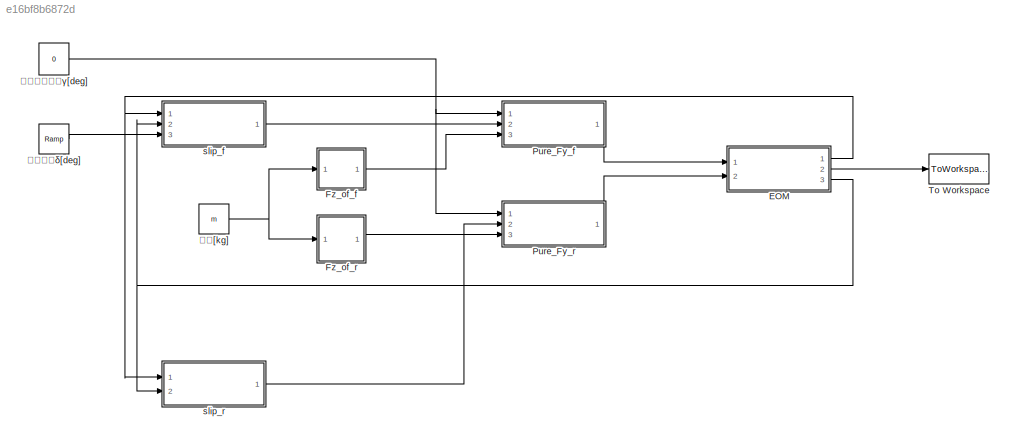
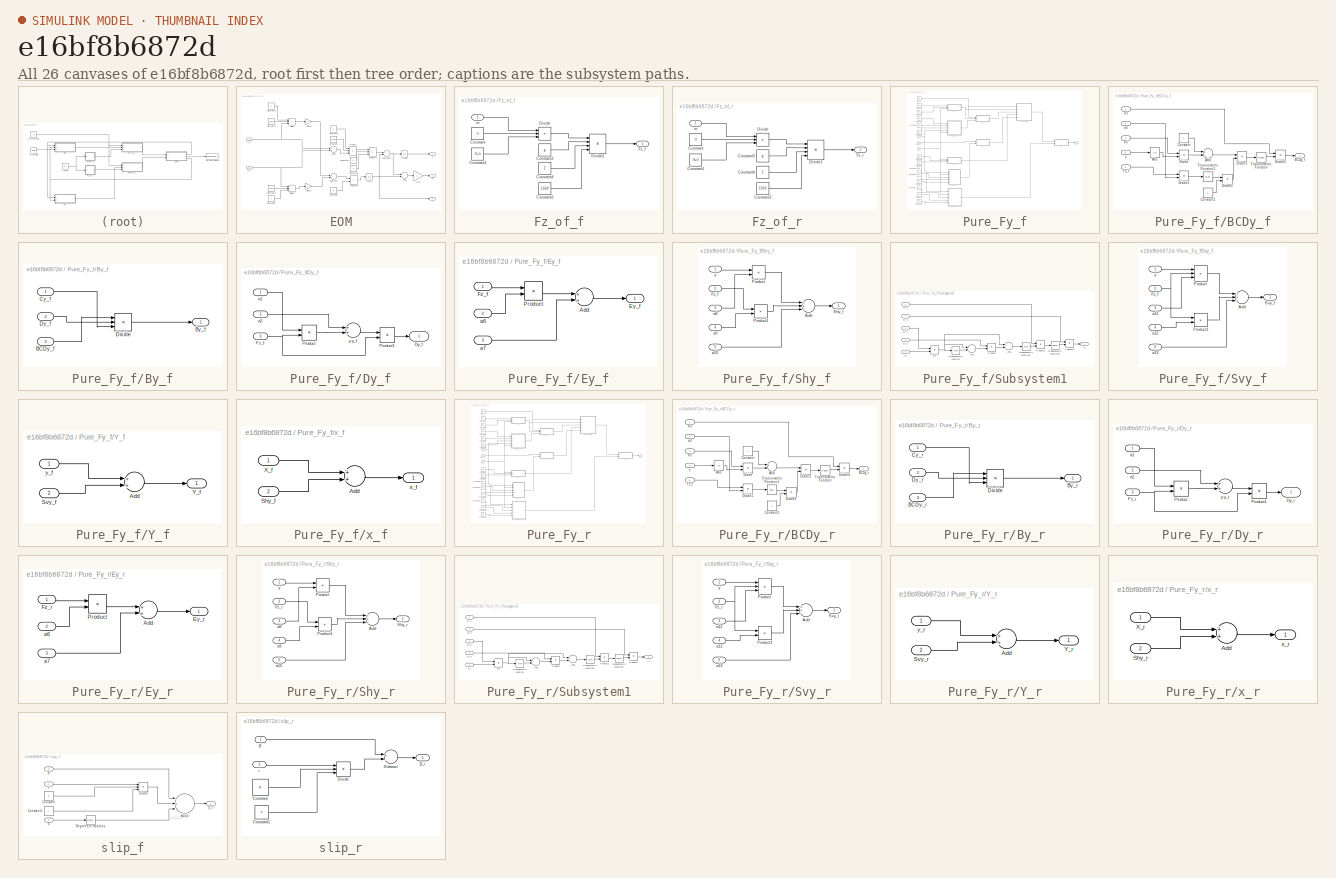
[diagram: thumbnail index - all 26 canvases of the model, root first then tree order]
MODEL slx_e16bf8b6872d
KIND model
CONFIG AbsTol = auto
CONFIG EnableMultiTasking = off
CONFIG FixedStep = auto
CONFIG MaxStep = auto
CONFIG MinStep = auto
CONFIG RelTol = 1e-3
CONFIG SampleTimeConstraint = Unconstrained
CONFIG Solver = VariableStepAuto
CONFIG SolverName = VariableStepAuto
CONFIG StartTime = 0.0
CONFIG StopTime = 60
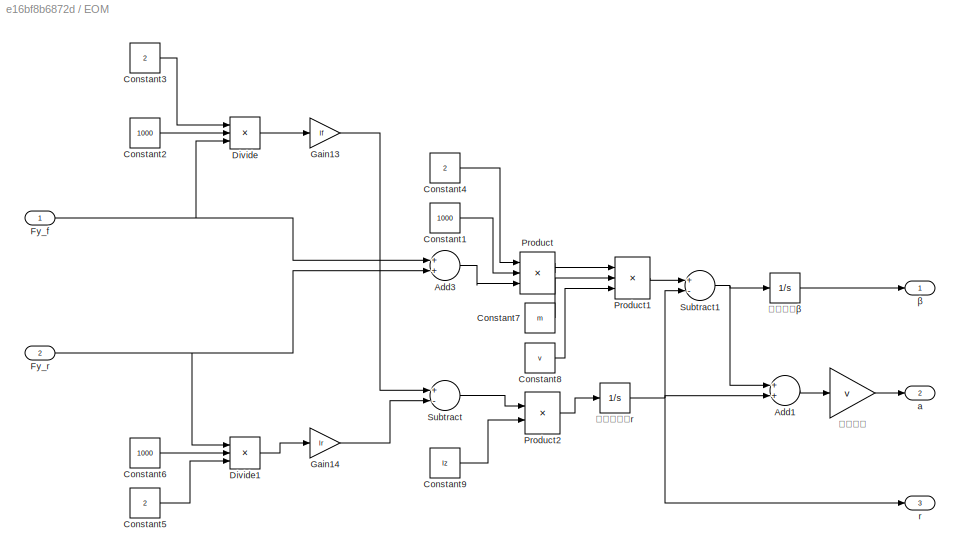
BLOCK [SubSystem] EOM
  Ports = [2, 3]
  RequestExecContextInheritance = off
BLOCK [Sum] EOM/Add1
  InputSameDT = off
  OutDataTypeStr = Inherit: Inherit via internal rule
  Ports = [2, 1]
  SaturateOnIntegerOverflow = off
BLOCK [Sum] EOM/Add3
  InputSameDT = off
  OutDataTypeStr = Inherit: Inherit via internal rule
  Ports = [2, 1]
  SaturateOnIntegerOverflow = off
BLOCK [Constant] EOM/Constant1
  Value = 1000
BLOCK [Constant] EOM/Constant2
  Value = 1000
BLOCK [Constant] EOM/Constant3
  Value = 2
BLOCK [Constant] EOM/Constant4
  Value = 2
BLOCK [Constant] EOM/Constant5
  Value = 2
BLOCK [Constant] EOM/Constant6
  Value = 1000
BLOCK [Constant] EOM/Constant7
  Value = m
BLOCK [Constant] EOM/Constant8
  Value = v
BLOCK [Constant] EOM/Constant9
  Value = Iz
BLOCK [Product] EOM/Divide
  InputSameDT = off
  Inputs = ***
  OutDataTypeStr = Inherit: Inherit via internal rule
  Ports = [3, 1]
  RndMeth = Floor
  SaturateOnIntegerOverflow = off
BLOCK [Product] EOM/Divide1
  InputSameDT = off
  Inputs = ***
  OutDataTypeStr = Inherit: Inherit via internal rule
  Ports = [3, 1]
  RndMeth = Floor
  SaturateOnIntegerOverflow = off
BLOCK [Inport] EOM/Fy_f
  IconDisplay = Port number
BLOCK [Inport] EOM/Fy_r
  IconDisplay = Port number
  Port = 2
BLOCK [Gain] EOM/Gain13
  Gain = lf
  OutDataTypeStr = Inherit: Inherit via internal rule
  ParamDataTypeStr = Inherit: Inherit via internal rule
  SaturateOnIntegerOverflow = off
BLOCK [Gain] EOM/Gain14
  Gain = lr
  OutDataTypeStr = Inherit: Inherit via internal rule
  ParamDataTypeStr = Inherit: Inherit via internal rule
  SaturateOnIntegerOverflow = off
BLOCK [Product] EOM/Product
  InputSameDT = off
  Inputs = 3
  OutDataTypeStr = Inherit: Inherit via internal rule
  Ports = [3, 1]
  RndMeth = Floor
  SaturateOnIntegerOverflow = off
BLOCK [Product] EOM/Product1
  InputSameDT = off
  Inputs = *//
  OutDataTypeStr = Inherit: Inherit via internal rule
  Ports = [3, 1]
  RndMeth = Floor
  SaturateOnIntegerOverflow = off
BLOCK [Product] EOM/Product2
  InputSameDT = off
  Inputs = */
  OutDataTypeStr = Inherit: Inherit via internal rule
  Ports = [2, 1]
  RndMeth = Floor
  SaturateOnIntegerOverflow = off
BLOCK [Sum] EOM/Subtract
  InputSameDT = off
  Inputs = +-
  OutDataTypeStr = Inherit: Inherit via internal rule
  Ports = [2, 1]
  SaturateOnIntegerOverflow = off
BLOCK [Sum] EOM/Subtract1
  InputSameDT = off
  Inputs = +-
  OutDataTypeStr = Inherit: Inherit via internal rule
  Ports = [2, 1]
  SaturateOnIntegerOverflow = off
BLOCK [Outport] EOM/a
  IconDisplay = Port number
  Port = 2
  VectorParamsAs1DForOutWhenUnconnected = off
BLOCK [Outport] EOM/r
  IconDisplay = Port number
  Port = 3
  VectorParamsAs1DForOutWhenUnconnected = off
BLOCK [Outport] EOM/β
  IconDisplay = Port number
  VectorParamsAs1DForOutWhenUnconnected = off
BLOCK [Integrator] EOM/ヨーレイトr
  Ports = [1, 1]
BLOCK [Gain] EOM/横加速度
  Gain = v
  OutDataTypeStr = Inherit: Inherit via internal rule
  ParamDataTypeStr = Inherit: Inherit via internal rule
  SaturateOnIntegerOverflow = off
BLOCK [Integrator] EOM/横滑り角β
  Ports = [1, 1]
BLOCK [SubSystem] Fz_of_f
  Ports = [1, 1]
  RequestExecContextInheritance = off
BLOCK [Constant] Fz_of_f/Constant
  Value = lr
BLOCK [Constant] Fz_of_f/Constant1
  Value = lf+lr
BLOCK [Constant] Fz_of_f/Constant2
  Value = 1000
BLOCK [Constant] Fz_of_f/Constant3
  Value = g
BLOCK [Constant] Fz_of_f/Constant4
  Value = 2
BLOCK [Product] Fz_of_f/Divide
  InputSameDT = off
  Inputs = **/
  OutDataTypeStr = Inherit: Inherit via internal rule
  Ports = [3, 1]
  RndMeth = Floor
  SaturateOnIntegerOverflow = off
BLOCK [Product] Fz_of_f/Divide1
  InputSameDT = off
  Inputs = **//
  OutDataTypeStr = Inherit: Inherit via internal rule
  Ports = [4, 1]
  RndMeth = Floor
  SaturateOnIntegerOverflow = off
BLOCK [Outport] Fz_of_f/Fz_f
  IconDisplay = Port number
  VectorParamsAs1DForOutWhenUnconnected = off
BLOCK [Inport] Fz_of_f/m
  IconDisplay = Port number
BLOCK [SubSystem] Fz_of_r
  Ports = [1, 1]
  RequestExecContextInheritance = off
BLOCK [Constant] Fz_of_r/Constant
  Value = lf
BLOCK [Constant] Fz_of_r/Constant1
  Value = lf+lr
BLOCK [Constant] Fz_of_r/Constant2
  Value = 1000
BLOCK [Constant] Fz_of_r/Constant3
  Value = g
BLOCK [Constant] Fz_of_r/Constant4
  Value = 2
BLOCK [Product] Fz_of_r/Divide
  InputSameDT = off
  Inputs = **/
  OutDataTypeStr = Inherit: Inherit via internal rule
  Ports = [3, 1]
  RndMeth = Floor
  SaturateOnIntegerOverflow = off
BLOCK [Product] Fz_of_r/Divide1
  InputSameDT = off
  Inputs = **//
  OutDataTypeStr = Inherit: Inherit via internal rule
  Ports = [4, 1]
  RndMeth = Floor
  SaturateOnIntegerOverflow = off
BLOCK [Outport] Fz_of_r/Fz_r
  IconDisplay = Port number
  VectorParamsAs1DForOutWhenUnconnected = off
BLOCK [Inport] Fz_of_r/m
  IconDisplay = Port number
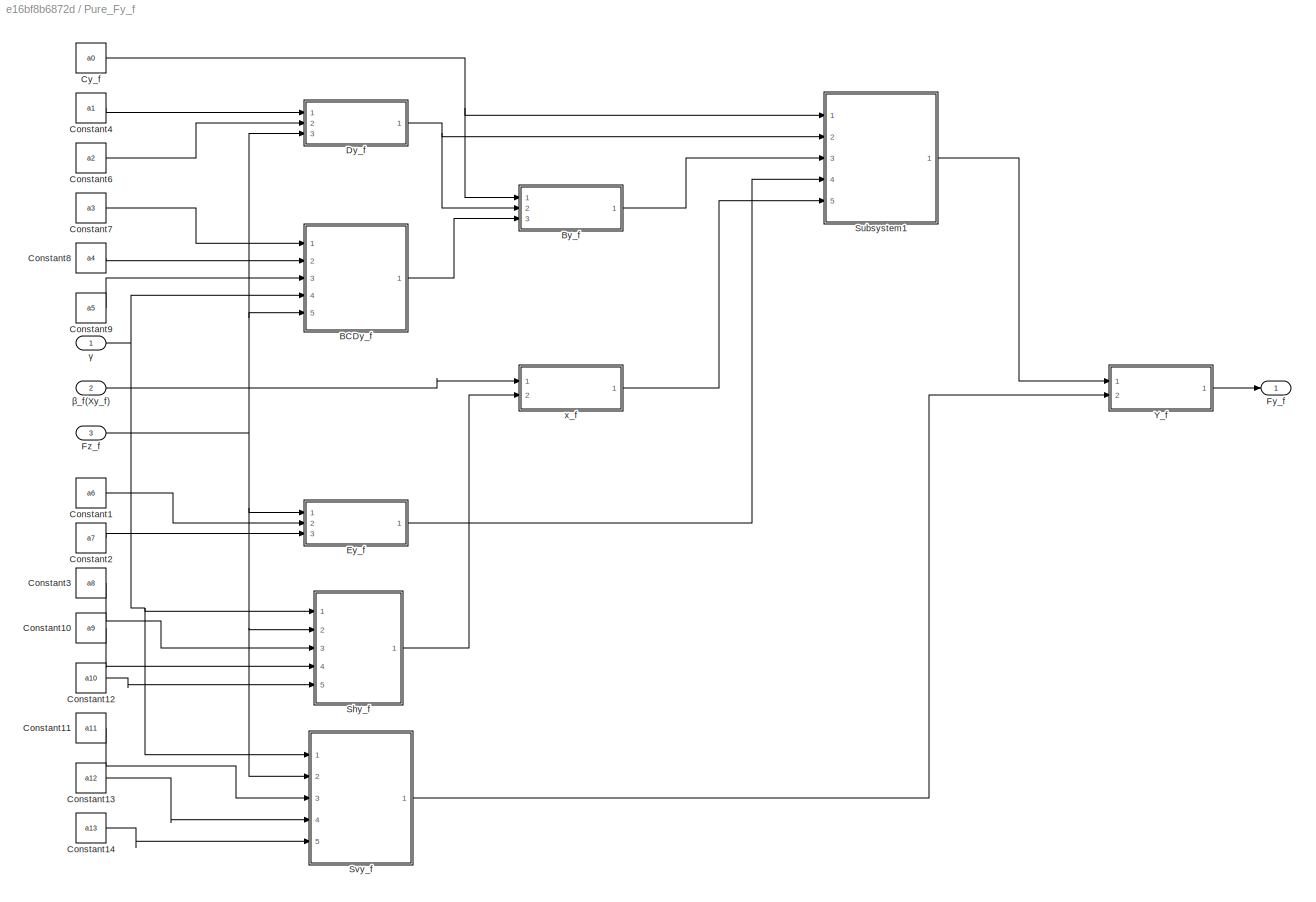
BLOCK [SubSystem] Pure_Fy_f
  Ports = [3, 1]
  RequestExecContextInheritance = off
BLOCK [SubSystem] Pure_Fy_f/BCDy_f
  Ports = [5, 1]
  RequestExecContextInheritance = off
BLOCK [Abs] Pure_Fy_f/BCDy_f/Abs
  SaturateOnIntegerOverflow = off
BLOCK [Sum] Pure_Fy_f/BCDy_f/Add
  InputSameDT = off
  Inputs = +-
  OutDataTypeStr = Inherit: Inherit via internal rule
  Ports = [2, 1]
  SaturateOnIntegerOverflow = off
BLOCK [Outport] Pure_Fy_f/BCDy_f/BCDy_f
  IconDisplay = Port number
  VectorParamsAs1DForOutWhenUnconnected = off
BLOCK [Constant] Pure_Fy_f/BCDy_f/Constant
BLOCK [Constant] Pure_Fy_f/BCDy_f/Constant1
  Value = 2
BLOCK [Product] Pure_Fy_f/BCDy_f/Divide
  InputSameDT = off
  Inputs = **
  OutDataTypeStr = Inherit: Inherit via internal rule
  Ports = [2, 1]
  RndMeth = Floor
  SaturateOnIntegerOverflow = off
BLOCK [Product] Pure_Fy_f/BCDy_f/Divide1
  InputSameDT = off
  Inputs = */
  OutDataTypeStr = Inherit: Inherit via internal rule
  Ports = [2, 1]
  RndMeth = Floor
  SaturateOnIntegerOverflow = off
BLOCK [Product] Pure_Fy_f/BCDy_f/Divide2
  InputSameDT = off
  Inputs = **
  OutDataTypeStr = Inherit: Inherit via internal rule
  Ports = [2, 1]
  RndMeth = Floor
  SaturateOnIntegerOverflow = off
BLOCK [Product] Pure_Fy_f/BCDy_f/Divide3
  InputSameDT = off
  Inputs = **
  OutDataTypeStr = Inherit: Inherit via internal rule
  Ports = [2, 1]
  RndMeth = Floor
  SaturateOnIntegerOverflow = off
BLOCK [Product] Pure_Fy_f/BCDy_f/Divide4
  InputSameDT = off
  Inputs = **
  OutDataTypeStr = Inherit: Inherit via internal rule
  Ports = [2, 1]
  RndMeth = Floor
  SaturateOnIntegerOverflow = off
BLOCK [Inport] Pure_Fy_f/BCDy_f/Fz_f
  IconDisplay = Port number
  Port = 5
BLOCK [Trigonometry] Pure_Fy_f/BCDy_f/Trigonometric Function
  Ports = [1, 1]
BLOCK [Trigonometry] Pure_Fy_f/BCDy_f/Trigonometric Function1
  Operator = atan
  Ports = [1, 1]
BLOCK [Inport] Pure_Fy_f/BCDy_f/a3
  IconDisplay = Port number
BLOCK [Inport] Pure_Fy_f/BCDy_f/a4
  IconDisplay = Port number
  Port = 2
BLOCK [Inport] Pure_Fy_f/BCDy_f/a5
  IconDisplay = Port number
  Port = 3
BLOCK [Inport] Pure_Fy_f/BCDy_f/γ
  IconDisplay = Port number
  Port = 4
BLOCK [SubSystem] Pure_Fy_f/By_f
  Ports = [3, 1]
  RequestExecContextInheritance = off
BLOCK [Inport] Pure_Fy_f/By_f/BCDy_f
  IconDisplay = Port number
  Port = 3
BLOCK [Outport] Pure_Fy_f/By_f/By_f
  IconDisplay = Port number
  VectorParamsAs1DForOutWhenUnconnected = off
BLOCK [Inport] Pure_Fy_f/By_f/Cy_f
  IconDisplay = Port number
BLOCK [Product] Pure_Fy_f/By_f/Divide
  InputSameDT = off
  Inputs = *//
  OutDataTypeStr = Inherit: Inherit via internal rule
  Ports = [3, 1]
  RndMeth = Floor
  SaturateOnIntegerOverflow = off
BLOCK [Inport] Pure_Fy_f/By_f/Dy_f
  IconDisplay = Port number
  Port = 2
BLOCK [Constant] Pure_Fy_f/Constant1
  Value = a6
BLOCK [Constant] Pure_Fy_f/Constant10
  Value = a9
BLOCK [Constant] Pure_Fy_f/Constant11
  Value = a11
BLOCK [Constant] Pure_Fy_f/Constant12
  Value = a10
BLOCK [Constant] Pure_Fy_f/Constant13
  Value = a12
BLOCK [Constant] Pure_Fy_f/Constant14
  Value = a13
BLOCK [Constant] Pure_Fy_f/Constant2
  Value = a7
BLOCK [Constant] Pure_Fy_f/Constant3
  Value = a8
BLOCK [Constant] Pure_Fy_f/Constant4
  Value = a1
BLOCK [Constant] Pure_Fy_f/Constant6
  Value = a2
BLOCK [Constant] Pure_Fy_f/Constant7
  Value = a3
BLOCK [Constant] Pure_Fy_f/Constant8
  Value = a4
BLOCK [Constant] Pure_Fy_f/Constant9
  Value = a5
BLOCK [Constant] Pure_Fy_f/Cy_f
  Value = a0
BLOCK [SubSystem] Pure_Fy_f/Dy_f
  Ports = [3, 1]
  RequestExecContextInheritance = off
BLOCK [Outport] Pure_Fy_f/Dy_f/Dy_f
  IconDisplay = Port number
  VectorParamsAs1DForOutWhenUnconnected = off
BLOCK [Inport] Pure_Fy_f/Dy_f/Fz_f
  IconDisplay = Port number
  Port = 3
BLOCK [Product] Pure_Fy_f/Dy_f/Product
  InputSameDT = off
  OutDataTypeStr = Inherit: Inherit via internal rule
  Ports = [2, 1]
  RndMeth = Floor
  SaturateOnIntegerOverflow = off
BLOCK [Product] Pure_Fy_f/Dy_f/Product1
  InputSameDT = off
  OutDataTypeStr = Inherit: Inherit via internal rule
  Ports = [2, 1]
  RndMeth = Floor
  SaturateOnIntegerOverflow = off
BLOCK [Inport] Pure_Fy_f/Dy_f/a1
  IconDisplay = Port number
BLOCK [Inport] Pure_Fy_f/Dy_f/a2
  IconDisplay = Port number
  Port = 2
BLOCK [Sum] Pure_Fy_f/Dy_f/μy_f
  InputSameDT = off
  OutDataTypeStr = Inherit: Inherit via internal rule
  Ports = [2, 1]
  SaturateOnIntegerOverflow = off
BLOCK [SubSystem] Pure_Fy_f/Ey_f
  Ports = [3, 1]
  RequestExecContextInheritance = off
BLOCK [Sum] Pure_Fy_f/Ey_f/Add
  InputSameDT = off
  OutDataTypeStr = Inherit: Inherit via internal rule
  Ports = [2, 1]
  SaturateOnIntegerOverflow = off
BLOCK [Outport] Pure_Fy_f/Ey_f/Ey_f
  IconDisplay = Port number
  VectorParamsAs1DForOutWhenUnconnected = off
BLOCK [Inport] Pure_Fy_f/Ey_f/Fz_f
  IconDisplay = Port number
BLOCK [Product] Pure_Fy_f/Ey_f/Product
  InputSameDT = off
  OutDataTypeStr = Inherit: Inherit via internal rule
  Ports = [2, 1]
  RndMeth = Floor
  SaturateOnIntegerOverflow = off
BLOCK [Inport] Pure_Fy_f/Ey_f/a6
  IconDisplay = Port number
  Port = 2
BLOCK [Inport] Pure_Fy_f/Ey_f/a7
  IconDisplay = Port number
  Port = 3
BLOCK [Outport] Pure_Fy_f/Fy_f
  IconDisplay = Port number
  VectorParamsAs1DForOutWhenUnconnected = off
BLOCK [Inport] Pure_Fy_f/Fz_f
  IconDisplay = Port number
  Port = 3
BLOCK [SubSystem] Pure_Fy_f/Shy_f
  Ports = [5, 1]
  RequestExecContextInheritance = off
BLOCK [Sum] Pure_Fy_f/Shy_f/Add
  InputSameDT = off
  Inputs = +++
  OutDataTypeStr = Inherit: Inherit via internal rule
  Ports = [3, 1]
  SaturateOnIntegerOverflow = off
BLOCK [Inport] Pure_Fy_f/Shy_f/Fz_f
  IconDisplay = Port number
  Port = 2
BLOCK [Product] Pure_Fy_f/Shy_f/Product
  InputSameDT = off
  OutDataTypeStr = Inherit: Inherit via internal rule
  Ports = [2, 1]
  RndMeth = Floor
  SaturateOnIntegerOverflow = off
BLOCK [Product] Pure_Fy_f/Shy_f/Product1
  InputSameDT = off
  OutDataTypeStr = Inherit: Inherit via internal rule
  Ports = [2, 1]
  RndMeth = Floor
  SaturateOnIntegerOverflow = off
BLOCK [Outport] Pure_Fy_f/Shy_f/Shy_f
  IconDisplay = Port number
  VectorParamsAs1DForOutWhenUnconnected = off
BLOCK [Inport] Pure_Fy_f/Shy_f/a10
  IconDisplay = Port number
  Port = 5
BLOCK [Inport] Pure_Fy_f/Shy_f/a8
  IconDisplay = Port number
  Port = 3
BLOCK [Inport] Pure_Fy_f/Shy_f/a9
  IconDisplay = Port number
  Port = 4
BLOCK [Inport] Pure_Fy_f/Shy_f/γ
  IconDisplay = Port number
BLOCK [SubSystem] Pure_Fy_f/Subsystem1
  Ports = [5, 1]
  RequestExecContextInheritance = off
BLOCK [Sum] Pure_Fy_f/Subsystem1/Add
  InputSameDT = off
  Inputs = +-
  OutDataTypeStr = Inherit: Inherit via internal rule
  Ports = [2, 1]
  SaturateOnIntegerOverflow = off
BLOCK [Sum] Pure_Fy_f/Subsystem1/Add1
  InputSameDT = off
  Inputs = +-
  OutDataTypeStr = Inherit: Inherit via internal rule
  Ports = [2, 1]
  SaturateOnIntegerOverflow = off
BLOCK [Product] Pure_Fy_f/Subsystem1/Bx
  InputSameDT = off
  OutDataTypeStr = Inherit: Inherit via internal rule
  Ports = [2, 1]
  RndMeth = Floor
  SaturateOnIntegerOverflow = off
BLOCK [Inport] Pure_Fy_f/Subsystem1/By_f
  IconDisplay = Port number
  Port = 3
BLOCK [Inport] Pure_Fy_f/Subsystem1/Cy_f
  IconDisplay = Port number
BLOCK [Inport] Pure_Fy_f/Subsystem1/Dy_f
  IconDisplay = Port number
  Port = 2
BLOCK [Inport] Pure_Fy_f/Subsystem1/Ey_f
  IconDisplay = Port number
  Port = 4
BLOCK [Product] Pure_Fy_f/Subsystem1/Product
  InputSameDT = off
  OutDataTypeStr = Inherit: Inherit via internal rule
  Ports = [2, 1]
  RndMeth = Floor
  SaturateOnIntegerOverflow = off
BLOCK [Product] Pure_Fy_f/Subsystem1/Product1
  InputSameDT = off
  OutDataTypeStr = Inherit: Inherit via internal rule
  Ports = [2, 1]
  RndMeth = Floor
  SaturateOnIntegerOverflow = off
BLOCK [Product] Pure_Fy_f/Subsystem1/Product2
  InputSameDT = off
  OutDataTypeStr = Inherit: Inherit via internal rule
  Ports = [2, 1]
  RndMeth = Floor
  SaturateOnIntegerOverflow = off
BLOCK [Trigonometry] Pure_Fy_f/Subsystem1/Trigonometric Function
  Operator = atan
  Ports = [1, 1]
BLOCK [Trigonometry] Pure_Fy_f/Subsystem1/Trigonometric Function1
  Operator = atan
  Ports = [1, 1]
BLOCK [Trigonometry] Pure_Fy_f/Subsystem1/Trigonometric Function2
  Ports = [1, 1]
BLOCK [Inport] Pure_Fy_f/Subsystem1/x_f
  IconDisplay = Port number
  Port = 5
BLOCK [Outport] Pure_Fy_f/Subsystem1/y_f
  IconDisplay = Port number
  VectorParamsAs1DForOutWhenUnconnected = off
BLOCK [SubSystem] Pure_Fy_f/Svy_f
  Ports = [5, 1]
  RequestExecContextInheritance = off
BLOCK [Sum] Pure_Fy_f/Svy_f/Add
  InputSameDT = off
  Inputs = +++
  OutDataTypeStr = Inherit: Inherit via internal rule
  Ports = [3, 1]
  SaturateOnIntegerOverflow = off
BLOCK [Inport] Pure_Fy_f/Svy_f/Fz_f
  IconDisplay = Port number
  Port = 2
BLOCK [Product] Pure_Fy_f/Svy_f/Product
  InputSameDT = off
  Inputs = 3
  OutDataTypeStr = Inherit: Inherit via internal rule
  Ports = [3, 1]
  RndMeth = Floor
  SaturateOnIntegerOverflow = off
BLOCK [Product] Pure_Fy_f/Svy_f/Product1
  InputSameDT = off
  OutDataTypeStr = Inherit: Inherit via internal rule
  Ports = [2, 1]
  RndMeth = Floor
  SaturateOnIntegerOverflow = off
BLOCK [Outport] Pure_Fy_f/Svy_f/Svy_f
  IconDisplay = Port number
  VectorParamsAs1DForOutWhenUnconnected = off
BLOCK [Inport] Pure_Fy_f/Svy_f/a11
  IconDisplay = Port number
  Port = 3
BLOCK [Inport] Pure_Fy_f/Svy_f/a12
  IconDisplay = Port number
  Port = 4
BLOCK [Inport] Pure_Fy_f/Svy_f/a13
  IconDisplay = Port number
  Port = 5
BLOCK [Inport] Pure_Fy_f/Svy_f/γ
  IconDisplay = Port number
BLOCK [SubSystem] Pure_Fy_f/Y_f
  Ports = [2, 1]
  RequestExecContextInheritance = off
BLOCK [Sum] Pure_Fy_f/Y_f/Add
  InputSameDT = off
  OutDataTypeStr = Inherit: Inherit via internal rule
  Ports = [2, 1]
  SaturateOnIntegerOverflow = off
BLOCK [Inport] Pure_Fy_f/Y_f/Svy_f
  IconDisplay = Port number
  Port = 2
BLOCK [Outport] Pure_Fy_f/Y_f/Y_f
  IconDisplay = Port number
  VectorParamsAs1DForOutWhenUnconnected = off
BLOCK [Inport] Pure_Fy_f/Y_f/y_f
  IconDisplay = Port number
BLOCK [SubSystem] Pure_Fy_f/x_f
  Ports = [2, 1]
  RequestExecContextInheritance = off
BLOCK [Sum] Pure_Fy_f/x_f/Add
  InputSameDT = off
  OutDataTypeStr = Inherit: Inherit via internal rule
  Ports = [2, 1]
  SaturateOnIntegerOverflow = off
BLOCK [Inport] Pure_Fy_f/x_f/Shy_f
  IconDisplay = Port number
  Port = 2
BLOCK [Inport] Pure_Fy_f/x_f/X_f
  IconDisplay = Port number
BLOCK [Outport] Pure_Fy_f/x_f/x_f
  IconDisplay = Port number
  VectorParamsAs1DForOutWhenUnconnected = off
BLOCK [Inport] Pure_Fy_f/β_f(Xy_f)
  IconDisplay = Port number
  Port = 2
BLOCK [Inport] Pure_Fy_f/γ
  IconDisplay = Port number
BLOCK [SubSystem] Pure_Fy_r
  Ports = [3, 1]
  RequestExecContextInheritance = off
BLOCK [SubSystem] Pure_Fy_r/BCDy_r
  Ports = [5, 1]
  RequestExecContextInheritance = off
BLOCK [Abs] Pure_Fy_r/BCDy_r/Abs
  SaturateOnIntegerOverflow = off
BLOCK [Sum] Pure_Fy_r/BCDy_r/Add
  InputSameDT = off
  Inputs = +-
  OutDataTypeStr = Inherit: Inherit via internal rule
  Ports = [2, 1]
  SaturateOnIntegerOverflow = off
BLOCK [Outport] Pure_Fy_r/BCDy_r/BCDy_r
  IconDisplay = Port number
  VectorParamsAs1DForOutWhenUnconnected = off
BLOCK [Constant] Pure_Fy_r/BCDy_r/Constant
BLOCK [Constant] Pure_Fy_r/BCDy_r/Constant1
  Value = 2
BLOCK [Product] Pure_Fy_r/BCDy_r/Divide
  InputSameDT = off
  Inputs = **
  OutDataTypeStr = Inherit: Inherit via internal rule
  Ports = [2, 1]
  RndMeth = Floor
  SaturateOnIntegerOverflow = off
BLOCK [Product] Pure_Fy_r/BCDy_r/Divide1
  InputSameDT = off
  Inputs = */
  OutDataTypeStr = Inherit: Inherit via internal rule
  Ports = [2, 1]
  RndMeth = Floor
  SaturateOnIntegerOverflow = off
BLOCK [Product] Pure_Fy_r/BCDy_r/Divide2
  InputSameDT = off
  Inputs = **
  OutDataTypeStr = Inherit: Inherit via internal rule
  Ports = [2, 1]
  RndMeth = Floor
  SaturateOnIntegerOverflow = off
BLOCK [Product] Pure_Fy_r/BCDy_r/Divide3
  InputSameDT = off
  Inputs = **
  OutDataTypeStr = Inherit: Inherit via internal rule
  Ports = [2, 1]
  RndMeth = Floor
  SaturateOnIntegerOverflow = off
BLOCK [Product] Pure_Fy_r/BCDy_r/Divide4
  InputSameDT = off
  Inputs = **
  OutDataTypeStr = Inherit: Inherit via internal rule
  Ports = [2, 1]
  RndMeth = Floor
  SaturateOnIntegerOverflow = off
BLOCK [Inport] Pure_Fy_r/BCDy_r/Fz_r
  IconDisplay = Port number
  Port = 5
BLOCK [Trigonometry] Pure_Fy_r/BCDy_r/Trigonometric Function
  Ports = [1, 1]
BLOCK [Trigonometry] Pure_Fy_r/BCDy_r/Trigonometric Function1
  Operator = atan
  Ports = [1, 1]
BLOCK [Inport] Pure_Fy_r/BCDy_r/a3
  IconDisplay = Port number
BLOCK [Inport] Pure_Fy_r/BCDy_r/a4
  IconDisplay = Port number
  Port = 2
BLOCK [Inport] Pure_Fy_r/BCDy_r/a5
  IconDisplay = Port number
  Port = 3
BLOCK [Inport] Pure_Fy_r/BCDy_r/γ
  IconDisplay = Port number
  Port = 4
BLOCK [SubSystem] Pure_Fy_r/By_r
  Ports = [3, 1]
  RequestExecContextInheritance = off
BLOCK [Inport] Pure_Fy_r/By_r/BCDy_r
  IconDisplay = Port number
  Port = 3
BLOCK [Outport] Pure_Fy_r/By_r/By_r
  IconDisplay = Port number
  VectorParamsAs1DForOutWhenUnconnected = off
BLOCK [Inport] Pure_Fy_r/By_r/Cy_r
  IconDisplay = Port number
BLOCK [Product] Pure_Fy_r/By_r/Divide
  InputSameDT = off
  Inputs = *//
  OutDataTypeStr = Inherit: Inherit via internal rule
  Ports = [3, 1]
  RndMeth = Floor
  SaturateOnIntegerOverflow = off
BLOCK [Inport] Pure_Fy_r/By_r/Dy_r
  IconDisplay = Port number
  Port = 2
BLOCK [Constant] Pure_Fy_r/Constant1
  Value = a6
BLOCK [Constant] Pure_Fy_r/Constant10
  Value = a9
BLOCK [Constant] Pure_Fy_r/Constant11
  Value = a11
BLOCK [Constant] Pure_Fy_r/Constant12
  Value = a10
BLOCK [Constant] Pure_Fy_r/Constant13
  Value = a12
BLOCK [Constant] Pure_Fy_r/Constant14
  Value = a13
BLOCK [Constant] Pure_Fy_r/Constant2
  Value = a7
BLOCK [Constant] Pure_Fy_r/Constant3
  Value = a8
BLOCK [Constant] Pure_Fy_r/Constant4
  Value = a1
BLOCK [Constant] Pure_Fy_r/Constant6
  Value = a2
BLOCK [Constant] Pure_Fy_r/Constant7
  Value = a3
BLOCK [Constant] Pure_Fy_r/Constant8
  Value = a4
BLOCK [Constant] Pure_Fy_r/Constant9
  Value = a5
BLOCK [Constant] Pure_Fy_r/Cy_r
  Value = a0
BLOCK [SubSystem] Pure_Fy_r/Dy_r
  Ports = [3, 1]
  RequestExecContextInheritance = off
BLOCK [Outport] Pure_Fy_r/Dy_r/Dy_r
  IconDisplay = Port number
  VectorParamsAs1DForOutWhenUnconnected = off
BLOCK [Inport] Pure_Fy_r/Dy_r/Fz_r
  IconDisplay = Port number
  Port = 3
BLOCK [Product] Pure_Fy_r/Dy_r/Product
  InputSameDT = off
  OutDataTypeStr = Inherit: Inherit via internal rule
  Ports = [2, 1]
  RndMeth = Floor
  SaturateOnIntegerOverflow = off
BLOCK [Product] Pure_Fy_r/Dy_r/Product1
  InputSameDT = off
  OutDataTypeStr = Inherit: Inherit via internal rule
  Ports = [2, 1]
  RndMeth = Floor
  SaturateOnIntegerOverflow = off
BLOCK [Inport] Pure_Fy_r/Dy_r/a1
  IconDisplay = Port number
BLOCK [Inport] Pure_Fy_r/Dy_r/a2
  IconDisplay = Port number
  Port = 2
BLOCK [Sum] Pure_Fy_r/Dy_r/μy_r
  InputSameDT = off
  OutDataTypeStr = Inherit: Inherit via internal rule
  Ports = [2, 1]
  SaturateOnIntegerOverflow = off
BLOCK [SubSystem] Pure_Fy_r/Ey_r
  Ports = [3, 1]
  RequestExecContextInheritance = off
BLOCK [Sum] Pure_Fy_r/Ey_r/Add
  InputSameDT = off
  OutDataTypeStr = Inherit: Inherit via internal rule
  Ports = [2, 1]
  SaturateOnIntegerOverflow = off
BLOCK [Outport] Pure_Fy_r/Ey_r/Ey_r
  IconDisplay = Port number
  VectorParamsAs1DForOutWhenUnconnected = off
BLOCK [Inport] Pure_Fy_r/Ey_r/Fz_r
  IconDisplay = Port number
BLOCK [Product] Pure_Fy_r/Ey_r/Product
  InputSameDT = off
  OutDataTypeStr = Inherit: Inherit via internal rule
  Ports = [2, 1]
  RndMeth = Floor
  SaturateOnIntegerOverflow = off
BLOCK [Inport] Pure_Fy_r/Ey_r/a6
  IconDisplay = Port number
  Port = 2
BLOCK [Inport] Pure_Fy_r/Ey_r/a7
  IconDisplay = Port number
  Port = 3
BLOCK [Outport] Pure_Fy_r/Fy_r
  IconDisplay = Port number
  VectorParamsAs1DForOutWhenUnconnected = off
BLOCK [Inport] Pure_Fy_r/Fz_r
  IconDisplay = Port number
  Port = 3
BLOCK [SubSystem] Pure_Fy_r/Shy_r
  Ports = [5, 1]
  RequestExecContextInheritance = off
BLOCK [Sum] Pure_Fy_r/Shy_r/Add
  InputSameDT = off
  Inputs = +++
  OutDataTypeStr = Inherit: Inherit via internal rule
  Ports = [3, 1]
  SaturateOnIntegerOverflow = off
BLOCK [Inport] Pure_Fy_r/Shy_r/Fz_r
  IconDisplay = Port number
  Port = 2
BLOCK [Product] Pure_Fy_r/Shy_r/Product
  InputSameDT = off
  OutDataTypeStr = Inherit: Inherit via internal rule
  Ports = [2, 1]
  RndMeth = Floor
  SaturateOnIntegerOverflow = off
BLOCK [Product] Pure_Fy_r/Shy_r/Product1
  InputSameDT = off
  OutDataTypeStr = Inherit: Inherit via internal rule
  Ports = [2, 1]
  RndMeth = Floor
  SaturateOnIntegerOverflow = off
BLOCK [Outport] Pure_Fy_r/Shy_r/Shy_r
  IconDisplay = Port number
  VectorParamsAs1DForOutWhenUnconnected = off
BLOCK [Inport] Pure_Fy_r/Shy_r/a10
  IconDisplay = Port number
  Port = 5
BLOCK [Inport] Pure_Fy_r/Shy_r/a8
  IconDisplay = Port number
  Port = 3
BLOCK [Inport] Pure_Fy_r/Shy_r/a9
  IconDisplay = Port number
  Port = 4
BLOCK [Inport] Pure_Fy_r/Shy_r/γ
  IconDisplay = Port number
BLOCK [SubSystem] Pure_Fy_r/Subsystem1
  Ports = [5, 1]
  RequestExecContextInheritance = off
BLOCK [Sum] Pure_Fy_r/Subsystem1/Add
  InputSameDT = off
  Inputs = +-
  OutDataTypeStr = Inherit: Inherit via internal rule
  Ports = [2, 1]
  SaturateOnIntegerOverflow = off
BLOCK [Sum] Pure_Fy_r/Subsystem1/Add1
  InputSameDT = off
  Inputs = +-
  OutDataTypeStr = Inherit: Inherit via internal rule
  Ports = [2, 1]
  SaturateOnIntegerOverflow = off
BLOCK [Product] Pure_Fy_r/Subsystem1/Bx
  InputSameDT = off
  OutDataTypeStr = Inherit: Inherit via internal rule
  Ports = [2, 1]
  RndMeth = Floor
  SaturateOnIntegerOverflow = off
BLOCK [Inport] Pure_Fy_r/Subsystem1/By_r
  IconDisplay = Port number
  Port = 3
BLOCK [Inport] Pure_Fy_r/Subsystem1/Cy_r
  IconDisplay = Port number
BLOCK [Inport] Pure_Fy_r/Subsystem1/Dy_r
  IconDisplay = Port number
  Port = 2
BLOCK [Inport] Pure_Fy_r/Subsystem1/Ey_r
  IconDisplay = Port number
  Port = 4
BLOCK [Product] Pure_Fy_r/Subsystem1/Product
  InputSameDT = off
  OutDataTypeStr = Inherit: Inherit via internal rule
  Ports = [2, 1]
  RndMeth = Floor
  SaturateOnIntegerOverflow = off
BLOCK [Product] Pure_Fy_r/Subsystem1/Product1
  InputSameDT = off
  OutDataTypeStr = Inherit: Inherit via internal rule
  Ports = [2, 1]
  RndMeth = Floor
  SaturateOnIntegerOverflow = off
BLOCK [Product] Pure_Fy_r/Subsystem1/Product2
  InputSameDT = off
  OutDataTypeStr = Inherit: Inherit via internal rule
  Ports = [2, 1]
  RndMeth = Floor
  SaturateOnIntegerOverflow = off
BLOCK [Trigonometry] Pure_Fy_r/Subsystem1/Trigonometric Function
  Operator = atan
  Ports = [1, 1]
BLOCK [Trigonometry] Pure_Fy_r/Subsystem1/Trigonometric Function1
  Operator = atan
  Ports = [1, 1]
BLOCK [Trigonometry] Pure_Fy_r/Subsystem1/Trigonometric Function2
  Ports = [1, 1]
BLOCK [Inport] Pure_Fy_r/Subsystem1/x_r
  IconDisplay = Port number
  Port = 5
BLOCK [Outport] Pure_Fy_r/Subsystem1/y_r
  IconDisplay = Port number
  VectorParamsAs1DForOutWhenUnconnected = off
BLOCK [SubSystem] Pure_Fy_r/Svy_r
  Ports = [5, 1]
  RequestExecContextInheritance = off
BLOCK [Sum] Pure_Fy_r/Svy_r/Add
  InputSameDT = off
  Inputs = +++
  OutDataTypeStr = Inherit: Inherit via internal rule
  Ports = [3, 1]
  SaturateOnIntegerOverflow = off
BLOCK [Inport] Pure_Fy_r/Svy_r/Fz_r
  IconDisplay = Port number
  Port = 2
BLOCK [Product] Pure_Fy_r/Svy_r/Product
  InputSameDT = off
  Inputs = 3
  OutDataTypeStr = Inherit: Inherit via internal rule
  Ports = [3, 1]
  RndMeth = Floor
  SaturateOnIntegerOverflow = off
BLOCK [Product] Pure_Fy_r/Svy_r/Product1
  InputSameDT = off
  OutDataTypeStr = Inherit: Inherit via internal rule
  Ports = [2, 1]
  RndMeth = Floor
  SaturateOnIntegerOverflow = off
BLOCK [Outport] Pure_Fy_r/Svy_r/Svy_r
  IconDisplay = Port number
  VectorParamsAs1DForOutWhenUnconnected = off
BLOCK [Inport] Pure_Fy_r/Svy_r/a11
  IconDisplay = Port number
  Port = 3
BLOCK [Inport] Pure_Fy_r/Svy_r/a12
  IconDisplay = Port number
  Port = 4
BLOCK [Inport] Pure_Fy_r/Svy_r/a13
  IconDisplay = Port number
  Port = 5
BLOCK [Inport] Pure_Fy_r/Svy_r/γ
  IconDisplay = Port number
BLOCK [SubSystem] Pure_Fy_r/Y_r
  Ports = [2, 1]
  RequestExecContextInheritance = off
BLOCK [Sum] Pure_Fy_r/Y_r/Add
  InputSameDT = off
  OutDataTypeStr = Inherit: Inherit via internal rule
  Ports = [2, 1]
  SaturateOnIntegerOverflow = off
BLOCK [Inport] Pure_Fy_r/Y_r/Svy_r
  IconDisplay = Port number
  Port = 2
BLOCK [Outport] Pure_Fy_r/Y_r/Y_r
  IconDisplay = Port number
  VectorParamsAs1DForOutWhenUnconnected = off
BLOCK [Inport] Pure_Fy_r/Y_r/y_r
  IconDisplay = Port number
BLOCK [SubSystem] Pure_Fy_r/x_r
  Ports = [2, 1]
  RequestExecContextInheritance = off
BLOCK [Sum] Pure_Fy_r/x_r/Add
  InputSameDT = off
  OutDataTypeStr = Inherit: Inherit via internal rule
  Ports = [2, 1]
  SaturateOnIntegerOverflow = off
BLOCK [Inport] Pure_Fy_r/x_r/Shy_r
  IconDisplay = Port number
  Port = 2
BLOCK [Inport] Pure_Fy_r/x_r/X_r
  IconDisplay = Port number
BLOCK [Outport] Pure_Fy_r/x_r/x_r
  IconDisplay = Port number
  VectorParamsAs1DForOutWhenUnconnected = off
BLOCK [Inport] Pure_Fy_r/β_r(Xy_r)
  IconDisplay = Port number
  Port = 2
BLOCK [Inport] Pure_Fy_r/γ
  IconDisplay = Port number
BLOCK [ToWorkspace] To Workspace
  FixptAsFi = on
  MaxDataPoints = inf
  Ports = [1]
  SampleTime = -1
  SaveFormat = Timeseries
  VariableName = simout
BLOCK [SubSystem] slip_f
  Ports = [3, 1]
  RequestExecContextInheritance = off
BLOCK [Sum] slip_f/Add4
  InputSameDT = off
  Inputs = ++-
  OutDataTypeStr = Inherit: Inherit via internal rule
  Ports = [3, 1]
  SaturateOnIntegerOverflow = off
BLOCK [Constant] slip_f/Constant
  Value = lf
BLOCK [Constant] slip_f/Constant1
  Value = v
BLOCK [Reference] slip_f/Degrees to Radians  REF=simulink_extras/Transformations/Degrees to
Radians
  Ports = [1, 1]
  SourceBlock = simulink_extras/Transformations/Degrees to\nRadians
  SourceProductBaseCode = SL
  SourceProductName = Simulink
  SourceType = DegreesToRadians
BLOCK [Product] slip_f/Divide
  InputSameDT = off
  Inputs = **/
  OutDataTypeStr = Inherit: Inherit via internal rule
  Ports = [3, 1]
  RndMeth = Floor
  SaturateOnIntegerOverflow = off
BLOCK [Inport] slip_f/r
  IconDisplay = Port number
  Port = 2
BLOCK [Inport] slip_f/β
  IconDisplay = Port number
BLOCK [Outport] slip_f/β_f
  IconDisplay = Port number
  VectorParamsAs1DForOutWhenUnconnected = off
BLOCK [Inport] slip_f/δ
  IconDisplay = Port number
  Port = 3
BLOCK [SubSystem] slip_r
  Ports = [2, 1]
  RequestExecContextInheritance = off
BLOCK [Constant] slip_r/Constant
  Value = lr
BLOCK [Constant] slip_r/Constant1
  Value = v
BLOCK [Product] slip_r/Divide
  InputSameDT = off
  Inputs = **/
  OutDataTypeStr = Inherit: Inherit via internal rule
  Ports = [3, 1]
  RndMeth = Floor
  SaturateOnIntegerOverflow = off
BLOCK [Sum] slip_r/Subtract
  InputSameDT = off
  Inputs = +-
  OutDataTypeStr = Inherit: Inherit via internal rule
  Ports = [2, 1]
  SaturateOnIntegerOverflow = off
BLOCK [Inport] slip_r/r
  IconDisplay = Port number
  Port = 2
BLOCK [Inport] slip_r/β
  IconDisplay = Port number
BLOCK [Outport] slip_r/β_r
  IconDisplay = Port number
  VectorParamsAs1DForOutWhenUnconnected = off
BLOCK [Constant] キャンバー角γ[deg]
  Value = 0
BLOCK [Reference] 舵角入力δ[deg]  REF=simulink/Sources/Ramp
  Ports = [0, 1]
  SourceBlock = simulink/Sources/Ramp
  SourceProductBaseCode = SL
  SourceProductName = Simulink
  SourceType = Ramp
BLOCK [Constant] 車重[kg]
  Value = m
ANNOTATION slip_f: 前輪スリップ
LINE EOM/Add1:1 -> EOM/横加速度:1
LINE EOM/Add3:1 -> EOM/Product:3
LINE EOM/Constant1:1 -> EOM/Product:2
LINE EOM/Constant2:1 -> EOM/Divide:2
LINE EOM/Constant3:1 -> EOM/Divide:1
LINE EOM/Constant4:1 -> EOM/Product:1
LINE EOM/Constant5:1 -> EOM/Divide1:3
LINE EOM/Constant6:1 -> EOM/Divide1:2
LINE EOM/Constant7:1 -> EOM/Product1:2
LINE EOM/Constant8:1 -> EOM/Product1:3
LINE EOM/Constant9:1 -> EOM/Product2:2
LINE EOM/Divide1:1 -> EOM/Gain14:1
LINE EOM/Divide:1 -> EOM/Gain13:1
NET EOM/Fy_f:1 -> EOM/Add3:1, EOM/Divide:3
NET EOM/Fy_r:1 -> EOM/Add3:2, EOM/Divide1:1
LINE EOM/Gain13:1 -> EOM/Subtract:1
LINE EOM/Gain14:1 -> EOM/Subtract:2
LINE EOM/Product1:1 -> EOM/Subtract1:1
LINE EOM/Product2:1 -> EOM/ヨーレイトr:1
LINE EOM/Product:1 -> EOM/Product1:1
NET EOM/Subtract1:1 -> EOM/Add1:1, EOM/横滑り角β:1
LINE EOM/Subtract:1 -> EOM/Product2:1
NET EOM/ヨーレイトr:1 -> EOM/Add1:2, EOM/Subtract1:2, EOM/r:1
LINE EOM/横加速度:1 -> EOM/a:1
LINE EOM/横滑り角β:1 -> EOM/β:1
NET EOM:1 -> slip_f:1, slip_r:1
LINE EOM:2 -> To Workspace:1
NET EOM:3 -> slip_f:2, slip_r:2
LINE Fz_of_f/Constant1:1 -> Fz_of_f/Divide:3
LINE Fz_of_f/Constant2:1 -> Fz_of_f/Divide1:4
LINE Fz_of_f/Constant3:1 -> Fz_of_f/Divide1:2
LINE Fz_of_f/Constant4:1 -> Fz_of_f/Divide1:3
LINE Fz_of_f/Constant:1 -> Fz_of_f/Divide:2
LINE Fz_of_f/Divide1:1 -> Fz_of_f/Fz_f:1
LINE Fz_of_f/Divide:1 -> Fz_of_f/Divide1:1
LINE Fz_of_f/m:1 -> Fz_of_f/Divide:1
LINE Fz_of_f:1 -> Pure_Fy_f:3
LINE Fz_of_r/Constant1:1 -> Fz_of_r/Divide:3
LINE Fz_of_r/Constant2:1 -> Fz_of_r/Divide1:4
LINE Fz_of_r/Constant3:1 -> Fz_of_r/Divide1:2
LINE Fz_of_r/Constant4:1 -> Fz_of_r/Divide1:3
LINE Fz_of_r/Constant:1 -> Fz_of_r/Divide:2
LINE Fz_of_r/Divide1:1 -> Fz_of_r/Fz_r:1
LINE Fz_of_r/Divide:1 -> Fz_of_r/Divide1:1
LINE Fz_of_r/m:1 -> Fz_of_r/Divide:1
LINE Fz_of_r:1 -> Pure_Fy_r:3
LINE Pure_Fy_f/BCDy_f/Abs:1 -> Pure_Fy_f/BCDy_f/Divide:2
LINE Pure_Fy_f/BCDy_f/Add:1 -> Pure_Fy_f/BCDy_f/Divide3:1
LINE Pure_Fy_f/BCDy_f/Constant1:1 -> Pure_Fy_f/BCDy_f/Divide2:2
LINE Pure_Fy_f/BCDy_f/Constant:1 -> Pure_Fy_f/BCDy_f/Add:1
LINE Pure_Fy_f/BCDy_f/Divide1:1 -> Pure_Fy_f/BCDy_f/Trigonometric Function1:1
LINE Pure_Fy_f/BCDy_f/Divide2:1 -> Pure_Fy_f/BCDy_f/Divide3:2
LINE Pure_Fy_f/BCDy_f/Divide3:1 -> Pure_Fy_f/BCDy_f/Trigonometric Function:1
LINE Pure_Fy_f/BCDy_f/Divide4:1 -> Pure_Fy_f/BCDy_f/BCDy_f:1
LINE Pure_Fy_f/BCDy_f/Divide:1 -> Pure_Fy_f/BCDy_f/Add:2
LINE Pure_Fy_f/BCDy_f/Fz_f:1 -> Pure_Fy_f/BCDy_f/Divide1:1
LINE Pure_Fy_f/BCDy_f/Trigonometric Function1:1 -> Pure_Fy_f/BCDy_f/Divide2:1
LINE Pure_Fy_f/BCDy_f/Trigonometric Function:1 -> Pure_Fy_f/BCDy_f/Divide4:2
LINE Pure_Fy_f/BCDy_f/a3:1 -> Pure_Fy_f/BCDy_f/Divide4:1
LINE Pure_Fy_f/BCDy_f/a4:1 -> Pure_Fy_f/BCDy_f/Divide1:2
LINE Pure_Fy_f/BCDy_f/a5:1 -> Pure_Fy_f/BCDy_f/Divide:1
LINE Pure_Fy_f/BCDy_f/γ:1 -> Pure_Fy_f/BCDy_f/Abs:1
LINE Pure_Fy_f/BCDy_f:1 -> Pure_Fy_f/By_f:3
LINE Pure_Fy_f/By_f/BCDy_f:1 -> Pure_Fy_f/By_f/Divide:1
LINE Pure_Fy_f/By_f/Cy_f:1 -> Pure_Fy_f/By_f/Divide:3
LINE Pure_Fy_f/By_f/Divide:1 -> Pure_Fy_f/By_f/By_f:1
LINE Pure_Fy_f/By_f/Dy_f:1 -> Pure_Fy_f/By_f/Divide:2
LINE Pure_Fy_f/By_f:1 -> Pure_Fy_f/Subsystem1:3
LINE Pure_Fy_f/Constant10:1 -> Pure_Fy_f/Shy_f:4
LINE Pure_Fy_f/Constant11:1 -> Pure_Fy_f/Svy_f:3
LINE Pure_Fy_f/Constant12:1 -> Pure_Fy_f/Shy_f:5
LINE Pure_Fy_f/Constant13:1 -> Pure_Fy_f/Svy_f:4
LINE Pure_Fy_f/Constant14:1 -> Pure_Fy_f/Svy_f:5
LINE Pure_Fy_f/Constant1:1 -> Pure_Fy_f/Ey_f:2
LINE Pure_Fy_f/Constant2:1 -> Pure_Fy_f/Ey_f:3
LINE Pure_Fy_f/Constant3:1 -> Pure_Fy_f/Shy_f:3
LINE Pure_Fy_f/Constant4:1 -> Pure_Fy_f/Dy_f:1
LINE Pure_Fy_f/Constant6:1 -> Pure_Fy_f/Dy_f:2
LINE Pure_Fy_f/Constant7:1 -> Pure_Fy_f/BCDy_f:1
LINE Pure_Fy_f/Constant8:1 -> Pure_Fy_f/BCDy_f:2
LINE Pure_Fy_f/Constant9:1 -> Pure_Fy_f/BCDy_f:3
NET Pure_Fy_f/Cy_f:1 -> Pure_Fy_f/By_f:1, Pure_Fy_f/Subsystem1:1
NET Pure_Fy_f/Dy_f/Fz_f:1 -> Pure_Fy_f/Dy_f/Product1:2, Pure_Fy_f/Dy_f/Product:2
LINE Pure_Fy_f/Dy_f/Product1:1 -> Pure_Fy_f/Dy_f/Dy_f:1
LINE Pure_Fy_f/Dy_f/Product:1 -> Pure_Fy_f/Dy_f/μy_f:2
LINE Pure_Fy_f/Dy_f/a1:1 -> Pure_Fy_f/Dy_f/Product:1
LINE Pure_Fy_f/Dy_f/a2:1 -> Pure_Fy_f/Dy_f/μy_f:1
LINE Pure_Fy_f/Dy_f/μy_f:1 -> Pure_Fy_f/Dy_f/Product1:1
NET Pure_Fy_f/Dy_f:1 -> Pure_Fy_f/By_f:2, Pure_Fy_f/Subsystem1:2
LINE Pure_Fy_f/Ey_f/Add:1 -> Pure_Fy_f/Ey_f/Ey_f:1
LINE Pure_Fy_f/Ey_f/Fz_f:1 -> Pure_Fy_f/Ey_f/Product:1
LINE Pure_Fy_f/Ey_f/Product:1 -> Pure_Fy_f/Ey_f/Add:1
LINE Pure_Fy_f/Ey_f/a6:1 -> Pure_Fy_f/Ey_f/Product:2
LINE Pure_Fy_f/Ey_f/a7:1 -> Pure_Fy_f/Ey_f/Add:2
LINE Pure_Fy_f/Ey_f:1 -> Pure_Fy_f/Subsystem1:4
NET Pure_Fy_f/Fz_f:1 -> Pure_Fy_f/BCDy_f:5, Pure_Fy_f/Dy_f:3, Pure_Fy_f/Ey_f:1, Pure_Fy_f/Shy_f:2, Pure_Fy_f/Svy_f:2
LINE Pure_Fy_f/Shy_f/Add:1 -> Pure_Fy_f/Shy_f/Shy_f:1
LINE Pure_Fy_f/Shy_f/Fz_f:1 -> Pure_Fy_f/Shy_f/Product1:1
LINE Pure_Fy_f/Shy_f/Product1:1 -> Pure_Fy_f/Shy_f/Add:2
LINE Pure_Fy_f/Shy_f/Product:1 -> Pure_Fy_f/Shy_f/Add:1
LINE Pure_Fy_f/Shy_f/a10:1 -> Pure_Fy_f/Shy_f/Add:3
LINE Pure_Fy_f/Shy_f/a8:1 -> Pure_Fy_f/Shy_f/Product:2
LINE Pure_Fy_f/Shy_f/a9:1 -> Pure_Fy_f/Shy_f/Product1:2
LINE Pure_Fy_f/Shy_f/γ:1 -> Pure_Fy_f/Shy_f/Product:1
LINE Pure_Fy_f/Shy_f:1 -> Pure_Fy_f/x_f:2
LINE Pure_Fy_f/Subsystem1/Add1:1 -> Pure_Fy_f/Subsystem1/Trigonometric Function1:1
LINE Pure_Fy_f/Subsystem1/Add:1 -> Pure_Fy_f/Subsystem1/Product:2
NET Pure_Fy_f/Subsystem1/Bx:1 -> Pure_Fy_f/Subsystem1/Add1:1, Pure_Fy_f/Subsystem1/Add:1, Pure_Fy_f/Subsystem1/Trigonometric Function:1
LINE Pure_Fy_f/Subsystem1/By_f:1 -> Pure_Fy_f/Subsystem1/Bx:1
LINE Pure_Fy_f/Subsystem1/Cy_f:1 -> Pure_Fy_f/Subsystem1/Product1:1
LINE Pure_Fy_f/Subsystem1/Dy_f:1 -> Pure_Fy_f/Subsystem1/Product2:1
LINE Pure_Fy_f/Subsystem1/Ey_f:1 -> Pure_Fy_f/Subsystem1/Product:1
LINE Pure_Fy_f/Subsystem1/Product1:1 -> Pure_Fy_f/Subsystem1/Trigonometric Function2:1
LINE Pure_Fy_f/Subsystem1/Product2:1 -> Pure_Fy_f/Subsystem1/y_f:1
LINE Pure_Fy_f/Subsystem1/Product:1 -> Pure_Fy_f/Subsystem1/Add1:2
LINE Pure_Fy_f/Subsystem1/Trigonometric Function1:1 -> Pure_Fy_f/Subsystem1/Product1:2
LINE Pure_Fy_f/Subsystem1/Trigonometric Function2:1 -> Pure_Fy_f/Subsystem1/Product2:2
LINE Pure_Fy_f/Subsystem1/Trigonometric Function:1 -> Pure_Fy_f/Subsystem1/Add:2
LINE Pure_Fy_f/Subsystem1/x_f:1 -> Pure_Fy_f/Subsystem1/Bx:2
LINE Pure_Fy_f/Subsystem1:1 -> Pure_Fy_f/Y_f:1
LINE Pure_Fy_f/Svy_f/Add:1 -> Pure_Fy_f/Svy_f/Svy_f:1
NET Pure_Fy_f/Svy_f/Fz_f:1 -> Pure_Fy_f/Svy_f/Product1:1, Pure_Fy_f/Svy_f/Product:2
LINE Pure_Fy_f/Svy_f/Product1:1 -> Pure_Fy_f/Svy_f/Add:2
LINE Pure_Fy_f/Svy_f/Product:1 -> Pure_Fy_f/Svy_f/Add:1
LINE Pure_Fy_f/Svy_f/a11:1 -> Pure_Fy_f/Svy_f/Product:3
LINE Pure_Fy_f/Svy_f/a12:1 -> Pure_Fy_f/Svy_f/Product1:2
LINE Pure_Fy_f/Svy_f/a13:1 -> Pure_Fy_f/Svy_f/Add:3
LINE Pure_Fy_f/Svy_f/γ:1 -> Pure_Fy_f/Svy_f/Product:1
LINE Pure_Fy_f/Svy_f:1 -> Pure_Fy_f/Y_f:2
LINE Pure_Fy_f/Y_f/Add:1 -> Pure_Fy_f/Y_f/Y_f:1
LINE Pure_Fy_f/Y_f/Svy_f:1 -> Pure_Fy_f/Y_f/Add:2
LINE Pure_Fy_f/Y_f/y_f:1 -> Pure_Fy_f/Y_f/Add:1
LINE Pure_Fy_f/Y_f:1 -> Pure_Fy_f/Fy_f:1
LINE Pure_Fy_f/x_f/Add:1 -> Pure_Fy_f/x_f/x_f:1
LINE Pure_Fy_f/x_f/Shy_f:1 -> Pure_Fy_f/x_f/Add:2
LINE Pure_Fy_f/x_f/X_f:1 -> Pure_Fy_f/x_f/Add:1
LINE Pure_Fy_f/x_f:1 -> Pure_Fy_f/Subsystem1:5
LINE Pure_Fy_f/β_f(Xy_f):1 -> Pure_Fy_f/x_f:1
NET Pure_Fy_f/γ:1 -> Pure_Fy_f/BCDy_f:4, Pure_Fy_f/Shy_f:1, Pure_Fy_f/Svy_f:1
LINE Pure_Fy_f:1 -> EOM:1
LINE Pure_Fy_r/BCDy_r/Abs:1 -> Pure_Fy_r/BCDy_r/Divide:2
LINE Pure_Fy_r/BCDy_r/Add:1 -> Pure_Fy_r/BCDy_r/Divide3:1
LINE Pure_Fy_r/BCDy_r/Constant1:1 -> Pure_Fy_r/BCDy_r/Divide2:2
LINE Pure_Fy_r/BCDy_r/Constant:1 -> Pure_Fy_r/BCDy_r/Add:1
LINE Pure_Fy_r/BCDy_r/Divide1:1 -> Pure_Fy_r/BCDy_r/Trigonometric Function1:1
LINE Pure_Fy_r/BCDy_r/Divide2:1 -> Pure_Fy_r/BCDy_r/Divide3:2
LINE Pure_Fy_r/BCDy_r/Divide3:1 -> Pure_Fy_r/BCDy_r/Trigonometric Function:1
LINE Pure_Fy_r/BCDy_r/Divide4:1 -> Pure_Fy_r/BCDy_r/BCDy_r:1
LINE Pure_Fy_r/BCDy_r/Divide:1 -> Pure_Fy_r/BCDy_r/Add:2
LINE Pure_Fy_r/BCDy_r/Fz_r:1 -> Pure_Fy_r/BCDy_r/Divide1:1
LINE Pure_Fy_r/BCDy_r/Trigonometric Function1:1 -> Pure_Fy_r/BCDy_r/Divide2:1
LINE Pure_Fy_r/BCDy_r/Trigonometric Function:1 -> Pure_Fy_r/BCDy_r/Divide4:2
LINE Pure_Fy_r/BCDy_r/a3:1 -> Pure_Fy_r/BCDy_r/Divide4:1
LINE Pure_Fy_r/BCDy_r/a4:1 -> Pure_Fy_r/BCDy_r/Divide1:2
LINE Pure_Fy_r/BCDy_r/a5:1 -> Pure_Fy_r/BCDy_r/Divide:1
LINE Pure_Fy_r/BCDy_r/γ:1 -> Pure_Fy_r/BCDy_r/Abs:1
LINE Pure_Fy_r/BCDy_r:1 -> Pure_Fy_r/By_r:3
LINE Pure_Fy_r/By_r/BCDy_r:1 -> Pure_Fy_r/By_r/Divide:1
LINE Pure_Fy_r/By_r/Cy_r:1 -> Pure_Fy_r/By_r/Divide:3
LINE Pure_Fy_r/By_r/Divide:1 -> Pure_Fy_r/By_r/By_r:1
LINE Pure_Fy_r/By_r/Dy_r:1 -> Pure_Fy_r/By_r/Divide:2
LINE Pure_Fy_r/By_r:1 -> Pure_Fy_r/Subsystem1:3
LINE Pure_Fy_r/Constant10:1 -> Pure_Fy_r/Shy_r:4
LINE Pure_Fy_r/Constant11:1 -> Pure_Fy_r/Svy_r:3
LINE Pure_Fy_r/Constant12:1 -> Pure_Fy_r/Shy_r:5
LINE Pure_Fy_r/Constant13:1 -> Pure_Fy_r/Svy_r:4
LINE Pure_Fy_r/Constant14:1 -> Pure_Fy_r/Svy_r:5
LINE Pure_Fy_r/Constant1:1 -> Pure_Fy_r/Ey_r:2
LINE Pure_Fy_r/Constant2:1 -> Pure_Fy_r/Ey_r:3
LINE Pure_Fy_r/Constant3:1 -> Pure_Fy_r/Shy_r:3
LINE Pure_Fy_r/Constant4:1 -> Pure_Fy_r/Dy_r:1
LINE Pure_Fy_r/Constant6:1 -> Pure_Fy_r/Dy_r:2
LINE Pure_Fy_r/Constant7:1 -> Pure_Fy_r/BCDy_r:1
LINE Pure_Fy_r/Constant8:1 -> Pure_Fy_r/BCDy_r:2
LINE Pure_Fy_r/Constant9:1 -> Pure_Fy_r/BCDy_r:3
NET Pure_Fy_r/Cy_r:1 -> Pure_Fy_r/By_r:1, Pure_Fy_r/Subsystem1:1
NET Pure_Fy_r/Dy_r/Fz_r:1 -> Pure_Fy_r/Dy_r/Product1:2, Pure_Fy_r/Dy_r/Product:2
LINE Pure_Fy_r/Dy_r/Product1:1 -> Pure_Fy_r/Dy_r/Dy_r:1
LINE Pure_Fy_r/Dy_r/Product:1 -> Pure_Fy_r/Dy_r/μy_r:2
LINE Pure_Fy_r/Dy_r/a1:1 -> Pure_Fy_r/Dy_r/Product:1
LINE Pure_Fy_r/Dy_r/a2:1 -> Pure_Fy_r/Dy_r/μy_r:1
LINE Pure_Fy_r/Dy_r/μy_r:1 -> Pure_Fy_r/Dy_r/Product1:1
NET Pure_Fy_r/Dy_r:1 -> Pure_Fy_r/By_r:2, Pure_Fy_r/Subsystem1:2
LINE Pure_Fy_r/Ey_r/Add:1 -> Pure_Fy_r/Ey_r/Ey_r:1
LINE Pure_Fy_r/Ey_r/Fz_r:1 -> Pure_Fy_r/Ey_r/Product:1
LINE Pure_Fy_r/Ey_r/Product:1 -> Pure_Fy_r/Ey_r/Add:1
LINE Pure_Fy_r/Ey_r/a6:1 -> Pure_Fy_r/Ey_r/Product:2
LINE Pure_Fy_r/Ey_r/a7:1 -> Pure_Fy_r/Ey_r/Add:2
LINE Pure_Fy_r/Ey_r:1 -> Pure_Fy_r/Subsystem1:4
NET Pure_Fy_r/Fz_r:1 -> Pure_Fy_r/BCDy_r:5, Pure_Fy_r/Dy_r:3, Pure_Fy_r/Ey_r:1, Pure_Fy_r/Shy_r:2, Pure_Fy_r/Svy_r:2
LINE Pure_Fy_r/Shy_r/Add:1 -> Pure_Fy_r/Shy_r/Shy_r:1
LINE Pure_Fy_r/Shy_r/Fz_r:1 -> Pure_Fy_r/Shy_r/Product1:1
LINE Pure_Fy_r/Shy_r/Product1:1 -> Pure_Fy_r/Shy_r/Add:2
LINE Pure_Fy_r/Shy_r/Product:1 -> Pure_Fy_r/Shy_r/Add:1
LINE Pure_Fy_r/Shy_r/a10:1 -> Pure_Fy_r/Shy_r/Add:3
LINE Pure_Fy_r/Shy_r/a8:1 -> Pure_Fy_r/Shy_r/Product:2
LINE Pure_Fy_r/Shy_r/a9:1 -> Pure_Fy_r/Shy_r/Product1:2
LINE Pure_Fy_r/Shy_r/γ:1 -> Pure_Fy_r/Shy_r/Product:1
LINE Pure_Fy_r/Shy_r:1 -> Pure_Fy_r/x_r:2
LINE Pure_Fy_r/Subsystem1/Add1:1 -> Pure_Fy_r/Subsystem1/Trigonometric Function1:1
LINE Pure_Fy_r/Subsystem1/Add:1 -> Pure_Fy_r/Subsystem1/Product:2
NET Pure_Fy_r/Subsystem1/Bx:1 -> Pure_Fy_r/Subsystem1/Add1:1, Pure_Fy_r/Subsystem1/Add:1, Pure_Fy_r/Subsystem1/Trigonometric Function:1
LINE Pure_Fy_r/Subsystem1/By_r:1 -> Pure_Fy_r/Subsystem1/Bx:1
LINE Pure_Fy_r/Subsystem1/Cy_r:1 -> Pure_Fy_r/Subsystem1/Product1:1
LINE Pure_Fy_r/Subsystem1/Dy_r:1 -> Pure_Fy_r/Subsystem1/Product2:1
LINE Pure_Fy_r/Subsystem1/Ey_r:1 -> Pure_Fy_r/Subsystem1/Product:1
LINE Pure_Fy_r/Subsystem1/Product1:1 -> Pure_Fy_r/Subsystem1/Trigonometric Function2:1
LINE Pure_Fy_r/Subsystem1/Product2:1 -> Pure_Fy_r/Subsystem1/y_r:1
LINE Pure_Fy_r/Subsystem1/Product:1 -> Pure_Fy_r/Subsystem1/Add1:2
LINE Pure_Fy_r/Subsystem1/Trigonometric Function1:1 -> Pure_Fy_r/Subsystem1/Product1:2
LINE Pure_Fy_r/Subsystem1/Trigonometric Function2:1 -> Pure_Fy_r/Subsystem1/Product2:2
LINE Pure_Fy_r/Subsystem1/Trigonometric Function:1 -> Pure_Fy_r/Subsystem1/Add:2
LINE Pure_Fy_r/Subsystem1/x_r:1 -> Pure_Fy_r/Subsystem1/Bx:2
LINE Pure_Fy_r/Subsystem1:1 -> Pure_Fy_r/Y_r:1
LINE Pure_Fy_r/Svy_r/Add:1 -> Pure_Fy_r/Svy_r/Svy_r:1
NET Pure_Fy_r/Svy_r/Fz_r:1 -> Pure_Fy_r/Svy_r/Product1:1, Pure_Fy_r/Svy_r/Product:2
LINE Pure_Fy_r/Svy_r/Product1:1 -> Pure_Fy_r/Svy_r/Add:2
LINE Pure_Fy_r/Svy_r/Product:1 -> Pure_Fy_r/Svy_r/Add:1
LINE Pure_Fy_r/Svy_r/a11:1 -> Pure_Fy_r/Svy_r/Product:3
LINE Pure_Fy_r/Svy_r/a12:1 -> Pure_Fy_r/Svy_r/Product1:2
LINE Pure_Fy_r/Svy_r/a13:1 -> Pure_Fy_r/Svy_r/Add:3
LINE Pure_Fy_r/Svy_r/γ:1 -> Pure_Fy_r/Svy_r/Product:1
LINE Pure_Fy_r/Svy_r:1 -> Pure_Fy_r/Y_r:2
LINE Pure_Fy_r/Y_r/Add:1 -> Pure_Fy_r/Y_r/Y_r:1
LINE Pure_Fy_r/Y_r/Svy_r:1 -> Pure_Fy_r/Y_r/Add:2
LINE Pure_Fy_r/Y_r/y_r:1 -> Pure_Fy_r/Y_r/Add:1
LINE Pure_Fy_r/Y_r:1 -> Pure_Fy_r/Fy_r:1
LINE Pure_Fy_r/x_r/Add:1 -> Pure_Fy_r/x_r/x_r:1
LINE Pure_Fy_r/x_r/Shy_r:1 -> Pure_Fy_r/x_r/Add:2
LINE Pure_Fy_r/x_r/X_r:1 -> Pure_Fy_r/x_r/Add:1
LINE Pure_Fy_r/x_r:1 -> Pure_Fy_r/Subsystem1:5
LINE Pure_Fy_r/β_r(Xy_r):1 -> Pure_Fy_r/x_r:1
NET Pure_Fy_r/γ:1 -> Pure_Fy_r/BCDy_r:4, Pure_Fy_r/Shy_r:1, Pure_Fy_r/Svy_r:1
LINE Pure_Fy_r:1 -> EOM:2
LINE slip_f/Add4:1 -> slip_f/β_f:1
LINE slip_f/Constant1:1 -> slip_f/Divide:3
LINE slip_f/Constant:1 -> slip_f/Divide:2
LINE slip_f/Degrees to Radians:1 -> slip_f/Add4:3
LINE slip_f/Divide:1 -> slip_f/Add4:2
LINE slip_f/r:1 -> slip_f/Divide:1
LINE slip_f/β:1 -> slip_f/Add4:1
LINE slip_f/δ:1 -> slip_f/Degrees to Radians:1
LINE slip_f:1 -> Pure_Fy_f:2
LINE slip_r/Constant1:1 -> slip_r/Divide:3
LINE slip_r/Constant:1 -> slip_r/Divide:2
LINE slip_r/Divide:1 -> slip_r/Subtract:2
LINE slip_r/Subtract:1 -> slip_r/β_r:1
LINE slip_r/r:1 -> slip_r/Divide:1
LINE slip_r/β:1 -> slip_r/Subtract:1
LINE slip_r:1 -> Pure_Fy_r:2
NET キャンバー角γ[deg]:1 -> Pure_Fy_f:1, Pure_Fy_r:1
LINE 舵角入力δ[deg]:1 -> slip_f:3
NET 車重[kg]:1 -> Fz_of_f:1, Fz_of_r:1
note: NET lines group one-source signal fan-out (src -> all destinations, sorted); 1:1 wires keep LINE
